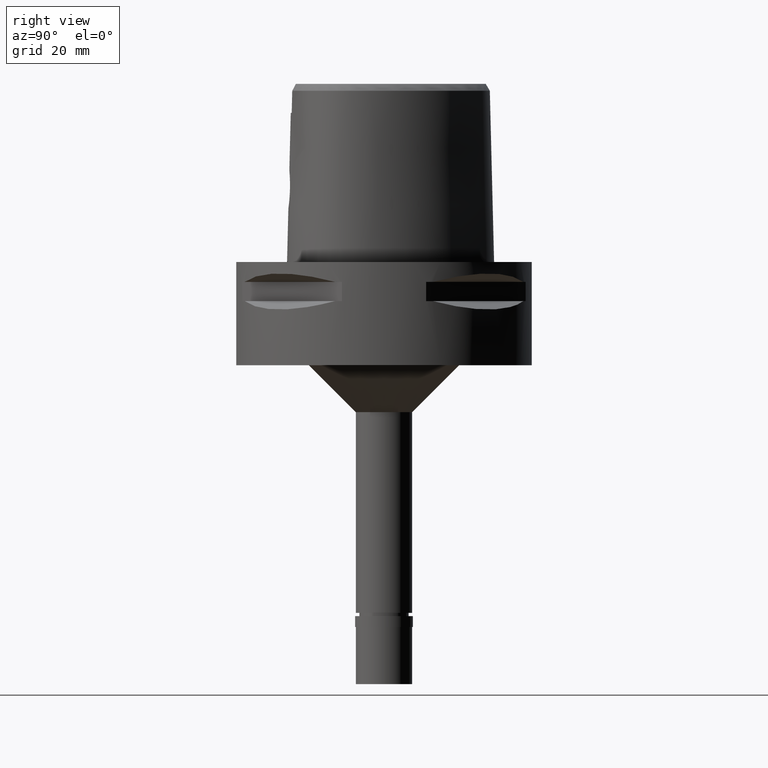
[diagram: clean part render]
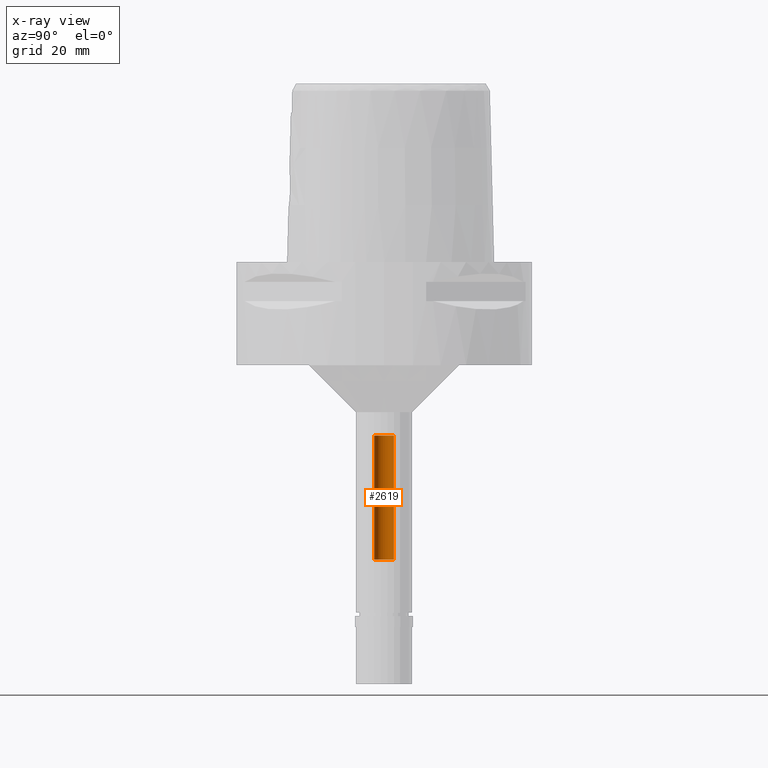
[diagram: x-ray — body ghosted, one internal face saturated and labeled with its STEP entity id]
A machine part, right view, then the same camera in x-ray: the body is ghosted and one INTERNAL B-rep face — a face not visible from any outside direction — is saturated and labeled: STEP entity #2619.
In plain terms, the highlighted cylindrical surface (edge-blend (fillet) strip) has radius 2.1 mm, axis along (0, 0, -1).
Its self-contained STEP definition (entity closure, byte-faithful):
#266 = EDGE_CURVE ( 'NONE', #2517, #4277, #3803, .T. ) ;
#294 = CARTESIAN_POINT ( 'NONE',  ( 0.0000000000000000000, 1.277306611510999858E-14, -37.00000000000000000 ) ) ;
#327 = ORIENTED_EDGE ( 'NONE', *, *, #419, .T. ) ;
#419 = EDGE_CURVE ( 'NONE', #2517, #650, #2272, .T. ) ;
#432 = CARTESIAN_POINT ( 'NONE',  ( 0.0000000000000000000, 2.100000000000000089, -63.50000000000000000 ) ) ;
#455 = ORIENTED_EDGE ( 'NONE', *, *, #2491, .T. ) ;
#462 = VECTOR ( 'NONE', #2634, 1000.000000000000000 ) ;
#609 = AXIS2_PLACEMENT_3D ( 'NONE', #2309, #3827, #3601 ) ;
#650 = VERTEX_POINT ( 'NONE', #651 ) ;
#651 = CARTESIAN_POINT ( 'NONE',  ( 0.0000000000000000000, 2.100000000000000089, -63.50000000000000000 ) ) ;
#1131 = CARTESIAN_POINT ( 'NONE',  ( 0.0000000000000000000, -2.100000000000000089, -63.50000000000000000 ) ) ;
#1201 = DIRECTION ( 'NONE',  ( 0.0000000000000000000, 0.0000000000000000000, 1.000000000000000000 ) ) ;
#1247 = LINE ( 'NONE', #432, #3805 ) ;
#1431 = CARTESIAN_POINT ( 'NONE',  ( 0.0000000000000000000, -2.100000000000000089, -37.00000000000000000 ) ) ;
#1483 = CARTESIAN_POINT ( 'NONE',  ( 0.0000000000000000000, 1.277306611510999858E-14, 4.299999999999999822 ) ) ;
#1802 = DIRECTION ( 'NONE',  ( 0.0000000000000000000, 0.0000000000000000000, 1.000000000000000000 ) ) ;
#1856 = DIRECTION ( 'NONE',  ( 0.0000000000000000000, 0.0000000000000000000, -1.000000000000000000 ) ) ;
#2179 = FACE_OUTER_BOUND ( 'NONE', #4770, .T. ) ;
#2272 = CIRCLE ( 'NONE', #609, 2.100000000000000089 ) ;
#2309 = CARTESIAN_POINT ( 'NONE',  ( 0.0000000000000000000, 1.277306611510999858E-14, -63.50000000000000000 ) ) ;
#2491 = EDGE_CURVE ( 'NONE', #4493, #4277, #3474, .T. ) ;
#2517 = VERTEX_POINT ( 'NONE', #3352 ) ;
#2619 = ADVANCED_FACE ( 'NONE', ( #2179 ), #4496, .F. ) ;
#2634 = DIRECTION ( 'NONE',  ( 0.0000000000000000000, 0.0000000000000000000, 1.000000000000000000 ) ) ;
#2877 = ORIENTED_EDGE ( 'NONE', *, *, #4576, .T. ) ;
#3025 = ORIENTED_EDGE ( 'NONE', *, *, #266, .F. ) ;
#3140 = DIRECTION ( 'NONE',  ( 0.0000000000000000000, -1.000000000000000000, 0.0000000000000000000 ) ) ;
#3162 = CARTESIAN_POINT ( 'NONE',  ( 0.0000000000000000000, 2.100000000000000089, -37.00000000000000000 ) ) ;
#3325 = DIRECTION ( 'NONE',  ( 0.0000000000000000000, 1.000000000000000000, 0.0000000000000000000 ) ) ;
#3352 = CARTESIAN_POINT ( 'NONE',  ( 0.0000000000000000000, -2.100000000000000089, -63.50000000000000000 ) ) ;
#3474 = CIRCLE ( 'NONE', #4348, 2.100000000000000089 ) ;
#3601 = DIRECTION ( 'NONE',  ( 0.0000000000000000000, -1.000000000000000000, 0.0000000000000000000 ) ) ;
#3803 = LINE ( 'NONE', #1131, #462 ) ;
#3805 = VECTOR ( 'NONE', #1201, 1000.000000000000000 ) ;
#3827 = DIRECTION ( 'NONE',  ( 0.0000000000000000000, 0.0000000000000000000, -1.000000000000000000 ) ) ;
#4272 = AXIS2_PLACEMENT_3D ( 'NONE', #1483, #1856, #3140 ) ;
#4277 = VERTEX_POINT ( 'NONE', #1431 ) ;
#4348 = AXIS2_PLACEMENT_3D ( 'NONE', #294, #1802, #3325 ) ;
#4493 = VERTEX_POINT ( 'NONE', #3162 ) ;
#4496 = CYLINDRICAL_SURFACE ( 'NONE', #4272, 2.100000000000000089 ) ;
#4576 = EDGE_CURVE ( 'NONE', #650, #4493, #1247, .T. ) ;
#4770 = EDGE_LOOP ( 'NONE', ( #455, #3025, #327, #2877 ) ) ;